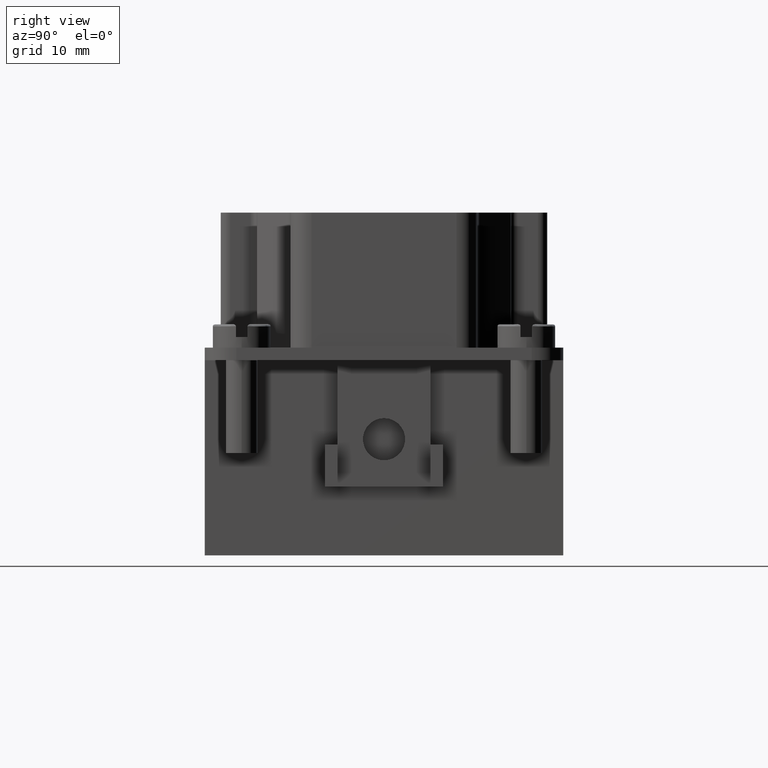
[diagram: clean part render]
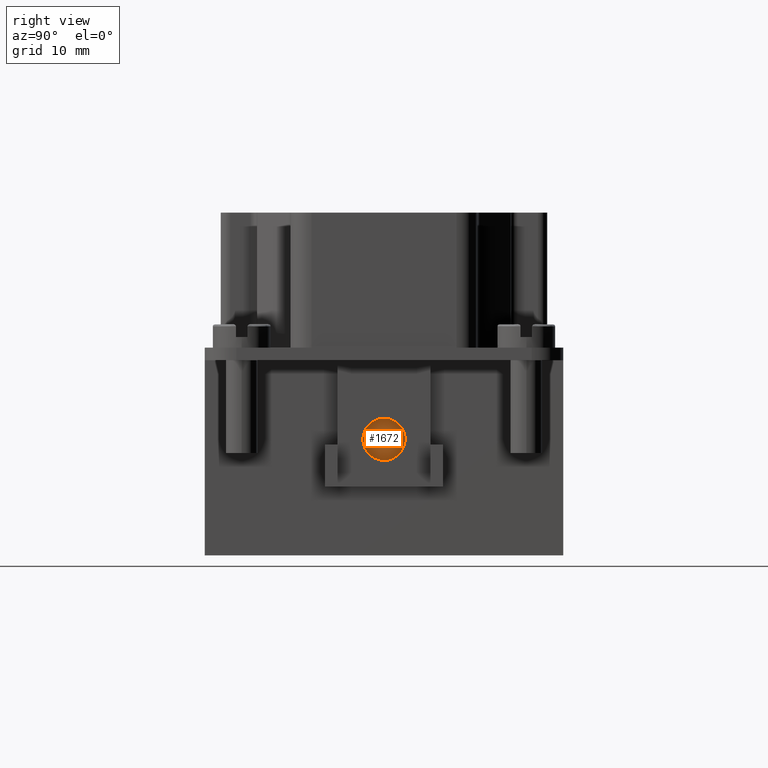
[diagram: same view with one face highlighted and labeled with its STEP entity id]
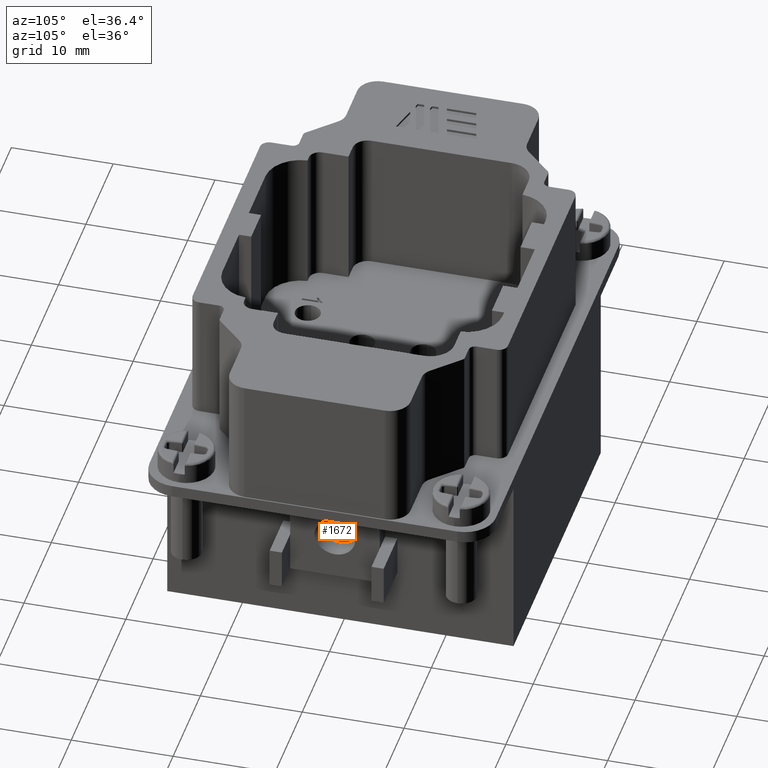
[diagram: same view with one face highlighted and labeled with its STEP entity id]
A machine part, right view. The second image highlights one B-rep face of the part: STEP entity #1672.
A second angle (auxiliary view) of the same face is appended — the face is thin or edge-on in the first view.
In plain terms, the highlighted planar face has unit normal (1, -0, 0).
Its self-contained STEP definition (entity closure, byte-faithful):
#588 = EDGE_CURVE ( 'NONE', #10655, #3750, #8012, .T. ) ;
#1672 = ADVANCED_FACE ( 'NONE', ( #3995 ), #7251, .T. ) ;
#2332 = DIRECTION ( 'NONE',  ( 1.000000000000000000, -0.000000000000000000, 0.000000000000000000 ) ) ;
#3750 = VERTEX_POINT ( 'NONE', #12207 ) ;
#3924 = ORIENTED_EDGE ( 'NONE', *, *, #5766, .T. ) ;
#3995 = FACE_OUTER_BOUND ( 'NONE', #15081, .T. ) ;
#4373 = DIRECTION ( 'NONE',  ( 0.000000000000000000, 0.000000000000000000, -1.000000000000000000 ) ) ;
#5766 = EDGE_CURVE ( 'NONE', #3750, #10655, #8780, .T. ) ;
#7251 = PLANE ( 'NONE',  #9025 ) ;
#7258 = DIRECTION ( 'NONE',  ( 1.000000000000000000, 0.000000000000000000, 0.000000000000000000 ) ) ;
#8012 = CIRCLE ( 'NONE', #11977, 0.07874015748031502893 ) ;
#8780 = CIRCLE ( 'NONE', #10781, 0.07874015748031502893 ) ;
#9025 = AXIS2_PLACEMENT_3D ( 'NONE', #14978, #2332, #16958 ) ;
#10655 = VERTEX_POINT ( 'NONE', #12919 ) ;
#10781 = AXIS2_PLACEMENT_3D ( 'NONE', #16648, #7258, #19886 ) ;
#11392 = ORIENTED_EDGE ( 'NONE', *, *, #588, .T. ) ;
#11977 = AXIS2_PLACEMENT_3D ( 'NONE', #18781, #15340, #4373 ) ;
#12207 = CARTESIAN_POINT ( 'NONE',  ( 0.6299212598425196763, 1.480970257865777719E-14, -0.7677165354330787173 ) ) ;
#12919 = CARTESIAN_POINT ( 'NONE',  ( 0.6299212598425196763, 1.480005969047551371E-14, -0.9251968503937086918 ) ) ;
#14978 = CARTESIAN_POINT ( 'NONE',  ( 0.6299212598425196763, 0.6692913385827126138, -0.5511811023622086303 ) ) ;
#15081 = EDGE_LOOP ( 'NONE', ( #11392, #3924 ) ) ;
#15340 = DIRECTION ( 'NONE',  ( 1.000000000000000000, 0.000000000000000000, 0.000000000000000000 ) ) ;
#16648 = CARTESIAN_POINT ( 'NONE',  ( 0.6299212598425196763, 1.480005969047551371E-14, -0.8464566929133937601 ) ) ;
#16958 = DIRECTION ( 'NONE',  ( 0.000000000000000000, 0.000000000000000000, -1.000000000000000000 ) ) ;
#18781 = CARTESIAN_POINT ( 'NONE',  ( 0.6299212598425196763, 1.480005969047551371E-14, -0.8464566929133937601 ) ) ;
#19886 = DIRECTION ( 'NONE',  ( 0.000000000000000000, 0.000000000000000000, -1.000000000000000000 ) ) ;